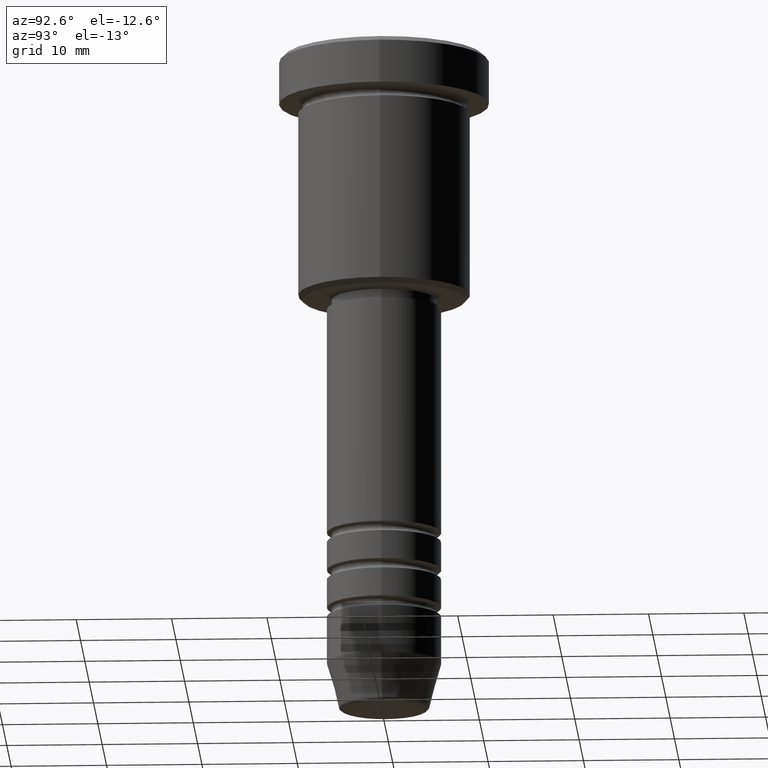
[diagram: clean part render]
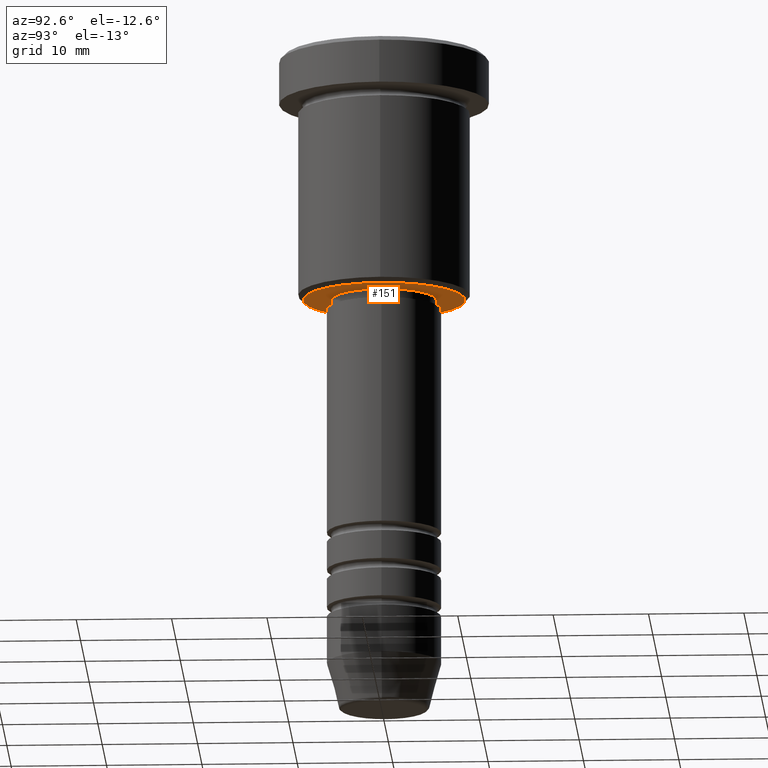
[diagram: same view with one face highlighted and labeled with its STEP entity id]
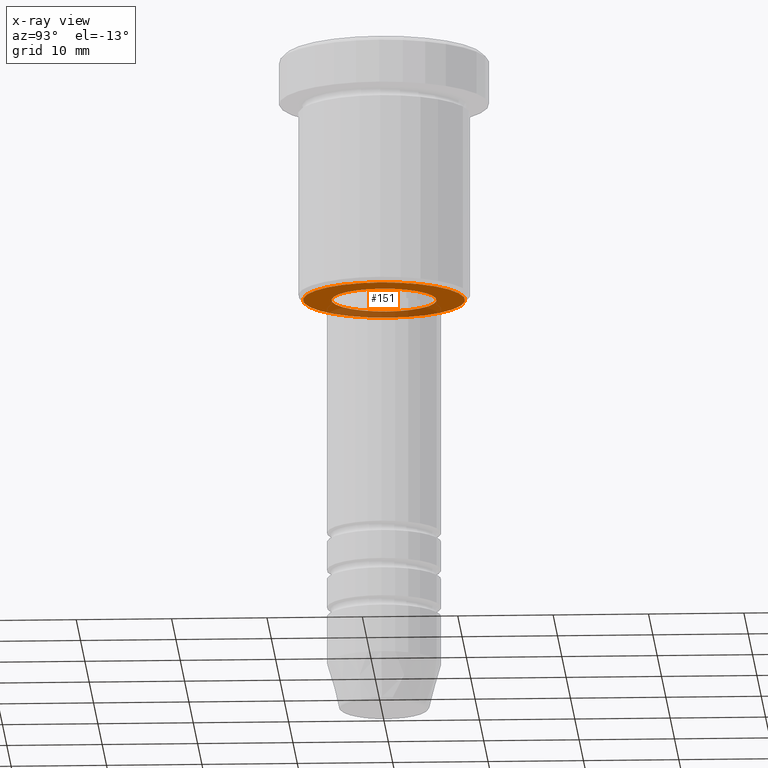
[diagram: x-ray of the same camera — body ghosted, the highlighted face saturated]
A machine part, auxiliary view. The second image highlights one B-rep face of the part: STEP entity #151.
The next image is the same camera in x-ray: the body ghosted, the highlighted face saturated — about 26% of this face is hidden behind the body in this view.
In plain terms, the highlighted planar face has unit normal (0, 0, -1).
Its self-contained STEP definition (entity closure, byte-faithful):
#1 = DIRECTION ( 'NONE',  ( 0.000000000000000000, 0.000000000000000000, -1.000000000000000000 ) ) ;
#8 = DIRECTION ( 'NONE',  ( 1.000000000000000000, 0.000000000000000000, 0.000000000000000000 ) ) ;
#53 = CARTESIAN_POINT ( 'NONE',  ( 8.499999999999992895, 0.000000000000000000, -26.00000000000000000 ) ) ;
#59 = CARTESIAN_POINT ( 'NONE',  ( 0.000000000000000000, 0.000000000000000000, -26.00000000000000000 ) ) ;
#70 = VERTEX_POINT ( 'NONE', #53 ) ;
#99 = FACE_BOUND ( 'NONE', #128, .T. ) ;
#123 = CARTESIAN_POINT ( 'NONE',  ( 0.000000000000000000, 0.000000000000000000, -26.00000000000000000 ) ) ;
#128 = EDGE_LOOP ( 'NONE', ( #616, #174 ) ) ;
#139 = DIRECTION ( 'NONE',  ( -1.000000000000000000, 0.000000000000000000, 0.000000000000000000 ) ) ;
#151 = ADVANCED_FACE ( 'NONE', ( #169, #99 ), #358, .T. ) ;
#169 = FACE_OUTER_BOUND ( 'NONE', #571, .T. ) ;
#174 = ORIENTED_EDGE ( 'NONE', *, *, #800, .T. ) ;
#246 = DIRECTION ( 'NONE',  ( 1.000000000000000000, 0.000000000000000000, 0.000000000000000000 ) ) ;
#293 = CARTESIAN_POINT ( 'NONE',  ( -5.499999999999999112, 6.735557395310441037E-16, -26.00000000000000000 ) ) ;
#348 = VERTEX_POINT ( 'NONE', #568 ) ;
#357 = ORIENTED_EDGE ( 'NONE', *, *, #448, .T. ) ;
#358 = PLANE ( 'NONE',  #681 ) ;
#367 = AXIS2_PLACEMENT_3D ( 'NONE', #59, #876, #139 ) ;
#446 = AXIS2_PLACEMENT_3D ( 'NONE', #594, #512, #246 ) ;
#448 = EDGE_CURVE ( 'NONE', #70, #553, #490, .T. ) ;
#465 = CARTESIAN_POINT ( 'NONE',  ( 0.000000000000000000, 9.000000000000000000, -26.00000000000000000 ) ) ;
#467 = DIRECTION ( 'NONE',  ( -0.000000000000000000, -0.000000000000000000, 1.000000000000000000 ) ) ;
#490 = CIRCLE ( 'NONE', #367, 8.499999999999992895 ) ;
#503 = AXIS2_PLACEMENT_3D ( 'NONE', #860, #690, #1049 ) ;
#505 = AXIS2_PLACEMENT_3D ( 'NONE', #123, #467, #8 ) ;
#512 = DIRECTION ( 'NONE',  ( -0.000000000000000000, -0.000000000000000000, 1.000000000000000000 ) ) ;
#553 = VERTEX_POINT ( 'NONE', #606 ) ;
#568 = CARTESIAN_POINT ( 'NONE',  ( 5.499999999999999112, 0.000000000000000000, -26.00000000000000000 ) ) ;
#571 = EDGE_LOOP ( 'NONE', ( #357, #831 ) ) ;
#594 = CARTESIAN_POINT ( 'NONE',  ( 0.000000000000000000, 0.000000000000000000, -26.00000000000000000 ) ) ;
#606 = CARTESIAN_POINT ( 'NONE',  ( -8.499999999999992895, 1.071565949253933532E-15, -26.00000000000000000 ) ) ;
#616 = ORIENTED_EDGE ( 'NONE', *, *, #909, .T. ) ;
#654 = EDGE_CURVE ( 'NONE', #553, #70, #1166, .T. ) ;
#681 = AXIS2_PLACEMENT_3D ( 'NONE', #465, #1, #810 ) ;
#690 = DIRECTION ( 'NONE',  ( 0.000000000000000000, 0.000000000000000000, -1.000000000000000000 ) ) ;
#800 = EDGE_CURVE ( 'NONE', #897, #348, #981, .T. ) ;
#810 = DIRECTION ( 'NONE',  ( -1.000000000000000000, 0.000000000000000000, -0.000000000000000000 ) ) ;
#823 = CIRCLE ( 'NONE', #446, 5.499999999999999112 ) ;
#831 = ORIENTED_EDGE ( 'NONE', *, *, #654, .T. ) ;
#860 = CARTESIAN_POINT ( 'NONE',  ( 0.000000000000000000, 0.000000000000000000, -26.00000000000000000 ) ) ;
#876 = DIRECTION ( 'NONE',  ( 0.000000000000000000, 0.000000000000000000, -1.000000000000000000 ) ) ;
#897 = VERTEX_POINT ( 'NONE', #293 ) ;
#909 = EDGE_CURVE ( 'NONE', #348, #897, #823, .T. ) ;
#981 = CIRCLE ( 'NONE', #505, 5.499999999999999112 ) ;
#1049 = DIRECTION ( 'NONE',  ( -1.000000000000000000, 0.000000000000000000, 0.000000000000000000 ) ) ;
#1166 = CIRCLE ( 'NONE', #503, 8.499999999999992895 ) ;